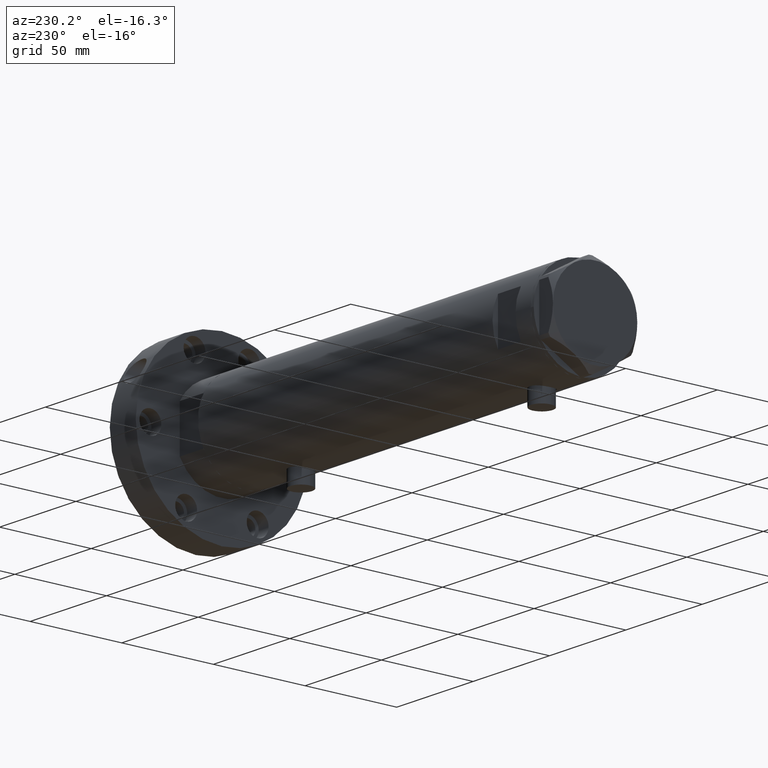
[diagram: clean part render]
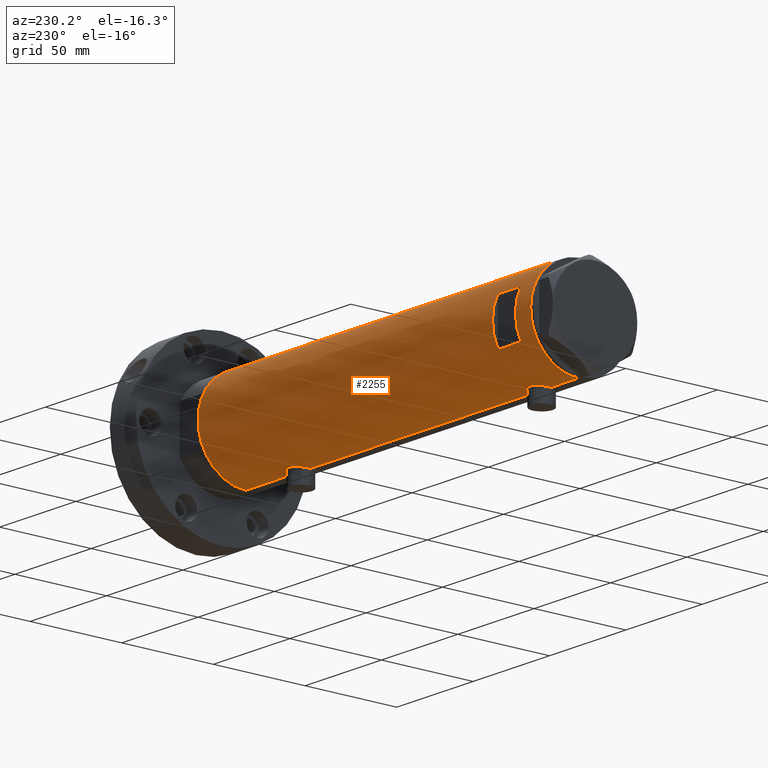
[diagram: same view with one face highlighted and labeled with its STEP entity id]
A machine part, auxiliary view. The second image highlights one B-rep face of the part: STEP entity #2255.
In plain terms, the highlighted cylindrical surface (partial cylindrical patch) has radius 26 mm, axis along (-1, -0, 0).
Its self-contained STEP definition (entity closure, byte-faithful):
#3 = CARTESIAN_POINT ( 'NONE',  ( 25.52465069878074644, 4.952713637311411787, 83.81255139184743541 ) ) ;
#17 = CARTESIAN_POINT ( 'NONE',  ( -25.92432690655987670, 2.018143994254067319, -78.57929422822714116 ) ) ;
#23 = CARTESIAN_POINT ( 'NONE',  ( -25.23757896588369576, 6.250168635417627350, 84.54324691589501128 ) ) ;
#27 = CARTESIAN_POINT ( 'NONE',  ( 25.89067367629247229, 2.424883365422557002, 96.56405204505172435 ) ) ;
#42 = CARTESIAN_POINT ( 'NONE',  ( -26.00000000000000355, 0.2043916521039003675, -78.90000000000000568 ) ) ;
#56 = CARTESIAN_POINT ( 'NONE',  ( 26.00000000000000000, 0.4983968644076025023, 81.95000000000000284 ) ) ;
#103 = CARTESIAN_POINT ( 'NONE',  ( 24.96662810169869928, 7.257932614256882076, -67.79702690473266102 ) ) ;
#136 = CARTESIAN_POINT ( 'NONE',  ( 25.20855488770172315, 6.367749707222650990, -65.77997776959041687 ) ) ;
#143 = ORIENTED_EDGE ( 'NONE', *, *, #1745, .T. ) ;
#157 = CARTESIAN_POINT ( 'NONE',  ( -25.98789693408479096, 0.8193301824841990877, 78.75051019734652868 ) ) ;
#208 = EDGE_CURVE ( 'NONE', #4496, #1179, #825, .T. ) ;
#215 = CARTESIAN_POINT ( 'NONE',  ( 25.48882460966381203, 5.133289275481222269, -75.22343523597911030 ) ) ;
#227 = VERTEX_POINT ( 'NONE', #4969 ) ;
#291 = AXIS2_PLACEMENT_3D ( 'NONE', #5024, #6446, #6051 ) ;
#321 = CARTESIAN_POINT ( 'NONE',  ( -25.90661719257679252, 2.209805098346972585, -66.80011254218482009 ) ) ;
#326 = ORIENTED_EDGE ( 'NONE', *, *, #5452, .F. ) ;
#376 = CARTESIAN_POINT ( 'NONE',  ( -25.42927140605242542, 5.422776733968215801, -69.51556003986718224 ) ) ;
#384 = CARTESIAN_POINT ( 'NONE',  ( -25.28673619335055278, 6.048783215285170378, 83.32449009651818983 ) ) ;
#399 = EDGE_CURVE ( 'NONE', #3932, #3839, #3460, .T. ) ;
#414 = CARTESIAN_POINT ( 'NONE',  ( -25.38675822915647728, 5.615881323213574028, -69.87693218337989265 ) ) ;
#427 = EDGE_CURVE ( 'NONE', #5497, #606, #6129, .T. ) ;
#449 = CARTESIAN_POINT ( 'NONE',  ( -25.57167265924275057, 4.701795585128869526, 80.82723711689963864 ) ) ;
#453 = CARTESIAN_POINT ( 'NONE',  ( 25.20855488770171604, 6.367749707222649214, 93.42002223040957176 ) ) ;
#472 = CARTESIAN_POINT ( 'NONE',  ( -25.98057228346869607, 1.024901789261876139, -78.81880585854824517 ) ) ;
#483 = CARTESIAN_POINT ( 'NONE',  ( 25.31017500740585291, 5.951503630041879767, 94.02049592637402498 ) ) ;
#510 = CARTESIAN_POINT ( 'NONE',  ( -25.72087293759780380, 3.814831448865738661, -77.61738294827860329 ) ) ;
#518 = CARTESIAN_POINT ( 'NONE',  ( -26.00000000000000355, 1.227111019500118713E-15, 91.20000000000000284 ) ) ;
#521 = CARTESIAN_POINT ( 'NONE',  ( 25.59685363299822569, 4.579266302355758711, 95.40972068102654191 ) ) ;
#570 = CARTESIAN_POINT ( 'NONE',  ( -25.31518616157687518, 5.930210831981638009, -74.66587117207023994 ) ) ;
#581 = CARTESIAN_POINT ( 'NONE',  ( 24.96662810169870284, 7.257932614256881187, 91.40297309526737024 ) ) ;
#606 = VERTEX_POINT ( 'NONE', #3075 ) ;
#632 = CARTESIAN_POINT ( 'NONE',  ( 25.08669247833291394, 6.831361936037332327, -66.64462260596206988 ) ) ;
#634 = ORIENTED_EDGE ( 'NONE', *, *, #2372, .F. ) ;
#638 = CARTESIAN_POINT ( 'NONE',  ( 25.63006864069251378, 4.375159448492150105, -75.84654411758884862 ) ) ;
#652 = ORIENTED_EDGE ( 'NONE', *, *, #4270, .F. ) ;
#663 = CARTESIAN_POINT ( 'NONE',  ( 25.01140519645288407, 7.101774040639634578, -72.17392235700825154 ) ) ;
#667 = CARTESIAN_POINT ( 'NONE',  ( 25.59528664075983428, 4.573671112500307778, -75.69909503516727511 ) ) ;
#689 = CARTESIAN_POINT ( 'NONE',  ( 25.98255381630416849, 0.9836221648041321153, 96.88933098058195981 ) ) ;
#745 = VERTEX_POINT ( 'NONE', #4640 ) ;
#766 = LINE ( 'NONE', #4320, #4999 ) ;
#818 = DIRECTION ( 'NONE',  ( 1.000000000000000000, 0.000000000000000000, 0.000000000000000000 ) ) ;
#825 = B_SPLINE_CURVE_WITH_KNOTS ( 'NONE', 3,
 ( #857, #3882, #5840, #4337, #5934, #5881, #321, #2901, #1915, #1819, #2430, #3812, #5410, #376, #414, #5812, #6434, #1446, #4398, #3451, #1321, #1353, #6408, #2935, #570, #1077, #5106, #1536, #2523, #3489, #1967, #1107, #4584, #4000, #510, #6495, #5572, #17, #5473, #472, #5973, #3021, #42, #6070 ),
 .UNSPECIFIED., .F., .F.,
 ( 4, 2, 2, 2, 2, 2, 2, 2, 2, 2, 2, 2, 2, 2, 2, 2, 2, 2, 2, 2, 2, 4 ),
 ( 1.191872608207982896E-18, 0.001225774033668401188, 0.001838661050502596794, 0.002451548067336792400, 0.003677322101005198792, 0.004903096134673604750, 0.006128870168342011142, 0.007354644202010417534, 0.007967531218844622898, 0.008580418235678826527, 0.009806192269347190418, 0.01103196630301555604, 0.01225774033668391994, 0.01287062735351812356, 0.01348351437035232546, 0.01409640138718652735, 0.01470928840402073098, 0.01593506243768915906, 0.01716083647135759060, 0.01838661050502601868, 0.01899949752186023619, 0.01961238453869445023 ),
 .UNSPECIFIED. ) ;
#857 = CARTESIAN_POINT ( 'NONE',  ( -26.00000000000000355, 1.227111019500118713E-15, -66.40000000000000568 ) ) ;
#872 = ORIENTED_EDGE ( 'NONE', *, *, #1515, .F. ) ;
#881 = ORIENTED_EDGE ( 'NONE', *, *, #4776, .F. ) ;
#888 = CARTESIAN_POINT ( 'NONE',  ( -25.57189498399054983, 4.707763994471525493, 89.08090281055548587 ) ) ;
#920 = CARTESIAN_POINT ( 'NONE',  ( -25.31738333113901263, 5.918941409682878074, 86.96757922472318114 ) ) ;
#959 = CARTESIAN_POINT ( 'NONE',  ( -25.95015815577422913, 1.621168830448742826, 90.98958570439819482 ) ) ;
#964 = CARTESIAN_POINT ( 'NONE',  ( 25.08669247833291749, 6.831361936037331439, 92.55537739403790454 ) ) ;
#989 = CARTESIAN_POINT ( 'NONE',  ( 25.41763780493359803, 5.474943943663465262, 94.58176313788933953 ) ) ;
#1020 = CARTESIAN_POINT ( 'NONE',  ( -25.28915991580760192, 6.038390257328910771, 86.57552651146907863 ) ) ;
#1023 = CARTESIAN_POINT ( 'NONE',  ( 25.38117076385347204, 5.641057083563605801, 94.39856579741848464 ) ) ;
#1077 = CARTESIAN_POINT ( 'NONE',  ( -25.36894112891956965, 5.694149517195237209, -75.23482505198309411 ) ) ;
#1080 = DIRECTION ( 'NONE',  ( 0.000000000000000000, 0.000000000000000000, 1.000000000000000000 ) ) ;
#1090 = CARTESIAN_POINT ( 'NONE',  ( 24.89484527721567986, 7.499778575171907491, 88.95449194517063063 ) ) ;
#1096 = CARTESIAN_POINT ( 'NONE',  ( 26.00000000000001066, 0.2455784580650491045, -62.25000000000000000 ) ) ;
#1107 = CARTESIAN_POINT ( 'NONE',  ( -25.57167265924274702, 4.701795585128869526, -76.77276288310035568 ) ) ;
#1109 = AXIS2_PLACEMENT_3D ( 'NONE', #5787, #1785, #818 ) ;
#1170 = CARTESIAN_POINT ( 'NONE',  ( 26.00000000000000355, -3.975028449552882818E-20, -62.24999999999999289 ) ) ;
#1179 = VERTEX_POINT ( 'NONE', #4111 ) ;
#1198 = CARTESIAN_POINT ( 'NONE',  ( 24.90951684770587704, 7.451587374037550227, -70.73395604521196844 ) ) ;
#1205 = CARTESIAN_POINT ( 'NONE',  ( 25.78922176490238627, 3.335318700939514436, -76.48550568766478364 ) ) ;
#1227 = CARTESIAN_POINT ( 'NONE',  ( 12.12435565298214080, 23.00000000000000355, 98.95000000000001705 ) ) ;
#1293 = FACE_BOUND ( 'NONE', #1659, .T. ) ;
#1321 = CARTESIAN_POINT ( 'NONE',  ( -25.23766275406408965, 6.249830297096023557, -72.23808095444880450 ) ) ;
#1353 = CARTESIAN_POINT ( 'NONE',  ( -25.23757896588369931, 6.250168635417630014, -73.05675308410499724 ) ) ;
#1446 = CARTESIAN_POINT ( 'NONE',  ( -25.28915991580760192, 6.038390257328910771, -71.02447348853092990 ) ) ;
#1450 = AXIS2_PLACEMENT_3D ( 'NONE', #4580, #3581, #2236 ) ;
#1455 = CARTESIAN_POINT ( 'NONE',  ( -25.90661719257679607, 2.209805098346973029, 90.79988745781523107 ) ) ;
#1459 = CIRCLE ( 'NONE', #291, 26.00000000000000355 ) ;
#1462 = CARTESIAN_POINT ( 'NONE',  ( 25.86510134953875450, 2.654921787384018739, 82.43132938305093660 ) ) ;
#1479 = CARTESIAN_POINT ( 'NONE',  ( -26.00000000000000355, 3.184077527313362130E-15, 78.69999999999998863 ) ) ;
#1487 = CARTESIAN_POINT ( 'NONE',  ( -25.92432690655987315, 2.018143994254077978, 79.02070577177285315 ) ) ;
#1513 = CARTESIAN_POINT ( 'NONE',  ( -25.96182217530153480, 1.422664245316465959, 91.03935273092393743 ) ) ;
#1515 = EDGE_CURVE ( 'NONE', #2695, #5580, #4541, .T. ) ;
#1536 = CARTESIAN_POINT ( 'NONE',  ( -25.43062364804611875, 5.412314182902751014, -75.78227648580933362 ) ) ;
#1548 = CARTESIAN_POINT ( 'NONE',  ( 25.98569222077104968, 0.9879514382926425364, 81.99918153312438562 ) ) ;
#1559 = CARTESIAN_POINT ( 'NONE',  ( 25.27545867390323764, 6.096774941222101063, -65.37522593042032781 ) ) ;
#1572 = CARTESIAN_POINT ( 'NONE',  ( 26.00000000000000355, 0.000000000000000000, -108.9500000000000028 ) ) ;
#1586 = CARTESIAN_POINT ( 'NONE',  ( 25.94484652078419273, 1.709678645892025228, 82.14334653240821638 ) ) ;
#1590 = CARTESIAN_POINT ( 'NONE',  ( 25.17424625143662098, 6.506691718592107598, -73.51241626033730370 ) ) ;
#1622 = CARTESIAN_POINT ( 'NONE',  ( 25.38117076385347559, 5.641057083563609353, -64.80143420258154663 ) ) ;
#1627 = CARTESIAN_POINT ( 'NONE',  ( 25.88814720404043968, 2.420758939209245231, -76.85288286828455284 ) ) ;
#1645 = EDGE_CURVE ( 'NONE', #5153, #2285, #2559, .T. ) ;
#1659 = EDGE_LOOP ( 'NONE', ( #326, #1668, #881, #652 ) ) ;
#1668 = ORIENTED_EDGE ( 'NONE', *, *, #6371, .F. ) ;
#1676 = DIRECTION ( 'NONE',  ( 1.000000000000000000, 0.000000000000000000, 0.000000000000000000 ) ) ;
#1709 = DIRECTION ( 'NONE',  ( 0.000000000000000000, 0.000000000000000000, 1.000000000000000000 ) ) ;
#1745 = EDGE_CURVE ( 'NONE', #745, #1179, #3410, .T. ) ;
#1785 = DIRECTION ( 'NONE',  ( 0.000000000000000000, 0.000000000000000000, 1.000000000000000000 ) ) ;
#1791 = DIRECTION ( 'NONE',  ( -0.000000000000000000, -0.000000000000000000, -1.000000000000000000 ) ) ;
#1819 = CARTESIAN_POINT ( 'NONE',  ( -25.72105193281917934, 3.813738527046908189, -67.68166308900568140 ) ) ;
#1844 = LINE ( 'NONE', #4725, #5846 ) ;
#1873 = CARTESIAN_POINT ( 'NONE',  ( -26.00000000000000355, 3.184081677783118585E-15, -108.9500000000000028 ) ) ;
#1915 = CARTESIAN_POINT ( 'NONE',  ( -25.81251897318926325, 3.135439098787735190, -67.22800821914826486 ) ) ;
#1919 = CARTESIAN_POINT ( 'NONE',  ( -25.45277932469920046, 5.307477387851101014, 81.64327199834687576 ) ) ;
#1943 = CARTESIAN_POINT ( 'NONE',  ( -25.85449082491264150, 2.772892880050696007, 79.33390702514675752 ) ) ;
#1947 = B_SPLINE_CURVE_WITH_KNOTS ( 'NONE', 3,
 ( #6236, #5732, #6123, #3183, #5172, #1627, #5140, #1205, #3209, #638, #667, #5204, #215, #4192, #6090, #1590, #4047, #2114, #663, #3627, #2147, #1198, #5133, #3598, #2186, #103, #3143, #632, #5623, #5590, #136, #1559, #4638, #1622, #3073, #4150, #6153, #3663, #4571, #5059, #3205, #4117, #3571, #5665, #1096, #1170 ),
 .UNSPECIFIED., .F., .F.,
 ( 4, 2, 2, 2, 2, 2, 2, 2, 2, 2, 2, 2, 2, 2, 2, 2, 2, 2, 2, 2, 2, 2, 4 ),
 ( 3.063710492572517602E-19, 0.001473395154583137480, 0.002210092731874702641, 0.002946790309166267153, 0.004420185463749410487, 0.005156883041040983238, 0.005893580618332555990, 0.007366975772915672870, 0.008840370927498791484, 0.009577068504790330408, 0.01031376608208186933, 0.01178716123666491075, 0.01326055639124795044, 0.01473395154583099012, 0.01547064912312249088, 0.01620734670041399164, 0.01694404427770549240, 0.01768074185499699316, 0.01915413700957996693, 0.02062753216416294069, 0.02210092731874591793, 0.02283762489603740134, 0.02357432247332888822 ),
 .UNSPECIFIED. ) ;
#1967 = CARTESIAN_POINT ( 'NONE',  ( -25.52275868012767646, 4.960454986366444885, -76.45761629406632665 ) ) ;
#1969 = CIRCLE ( 'NONE', #1450, 26.00000000000000355 ) ;
#1974 = EDGE_CURVE ( 'NONE', #2285, #5497, #1947, .T. ) ;
#1982 = CARTESIAN_POINT ( 'NONE',  ( 25.92799636947105668, 1.948138538329400093, 82.20322312211784777 ) ) ;
#2010 = CARTESIAN_POINT ( 'NONE',  ( -25.85406084573621754, 2.777003695811651962, 90.56412841326093144 ) ) ;
#2037 = CARTESIAN_POINT ( 'NONE',  ( -25.24784248027028966, 6.209126813737962713, 84.12731838311941601 ) ) ;
#2071 = CARTESIAN_POINT ( 'NONE',  ( 25.38132706741445688, 5.649034551923790559, 84.49268047185954345 ) ) ;
#2105 = CARTESIAN_POINT ( 'NONE',  ( -25.98057228346869607, 1.024901789261878138, 78.78119414145170651 ) ) ;
#2108 = CARTESIAN_POINT ( 'NONE',  ( 25.88814720404044323, 2.420758939209245675, 82.34711713171545000 ) ) ;
#2114 = CARTESIAN_POINT ( 'NONE',  ( 25.03487248886523275, 7.018875226450806082, -72.40423217392066135 ) ) ;
#2130 = CARTESIAN_POINT ( 'NONE',  ( 0.000000000000000000, 0.000000000000000000, -108.9500000000000028 ) ) ;
#2147 = CARTESIAN_POINT ( 'NONE',  ( 24.95233689475078265, 7.306396477445190385, -71.46103813146667960 ) ) ;
#2179 = CIRCLE ( 'NONE', #4985, 26.00000000000000355 ) ;
#2186 = CARTESIAN_POINT ( 'NONE',  ( 24.90976107960112529, 7.450765568638834324, -68.76117130648536602 ) ) ;
#2201 = DIRECTION ( 'NONE',  ( 1.000000000000000000, 0.000000000000000000, 0.000000000000000000 ) ) ;
#2236 = DIRECTION ( 'NONE',  ( 1.000000000000000000, -5.329070518200751394E-15, 0.000000000000000000 ) ) ;
#2255 = ADVANCED_FACE ( 'NONE', ( #1293, #6276 ), #5409, .T. ) ;
#2285 = VERTEX_POINT ( 'NONE', #4312 ) ;
#2329 = DIRECTION ( 'NONE',  ( 0.000000000000000000, 0.000000000000000000, 1.000000000000000000 ) ) ;
#2333 = B_SPLINE_CURVE_WITH_KNOTS ( 'NONE', 3,
 ( #4011, #56, #1548, #1586, #1982, #2108, #1462, #6046, #3560, #4504, #3069, #3, #2563, #2071, #5053, #4464, #4079, #6474, #5986, #6010, #5584, #3521, #1090, #3469, #5084, #581, #5510, #964, #2979, #4951, #453, #3496, #483, #1023, #989, #3035, #521, #2536, #4535, #27, #6112, #2673, #689, #2704, #4737, #3233 ),
 .UNSPECIFIED., .F., .F.,
 ( 4, 2, 2, 2, 2, 2, 2, 2, 2, 2, 2, 2, 2, 2, 2, 2, 2, 2, 2, 2, 2, 2, 4 ),
 ( 1.109123384753006195E-18, 0.001473395154583141816, 0.002210092731874708279, 0.002946790309166274525, 0.004420185463749423498, 0.005156883041040996249, 0.005893580618332569000, 0.007366975772915686747, 0.008840370927498805362, 0.009577068504790344286, 0.01031376608208188494, 0.01178716123666492463, 0.01326055639124796431, 0.01473395154583100573, 0.01547064912312250649, 0.01620734670041400205, 0.01694404427770550628, 0.01768074185499700357, 0.01915413700957997734, 0.02062753216416295110, 0.02210092731874592140, 0.02283762489603740828, 0.02357432247332889169 ),
 .UNSPECIFIED. ) ;
#2372 = EDGE_CURVE ( 'NONE', #227, #3932, #5472, .T. ) ;
#2405 = CARTESIAN_POINT ( 'NONE',  ( -25.36894112891957320, 5.694149517195235433, 82.36517494801691441 ) ) ;
#2430 = CARTESIAN_POINT ( 'NONE',  ( -25.67095236150574067, 4.133649689219787149, -67.94464771725739638 ) ) ;
#2435 = CARTESIAN_POINT ( 'NONE',  ( -25.81206132723604796, 3.139065735901513055, 79.53021230639120631 ) ) ;
#2463 = CARTESIAN_POINT ( 'NONE',  ( -25.81251897318926680, 3.135439098787735190, 90.37199178085172946 ) ) ;
#2523 = CARTESIAN_POINT ( 'NONE',  ( -25.45277932469920756, 5.307477387851102790, -75.95672800165310434 ) ) ;
#2531 = CARTESIAN_POINT ( 'NONE',  ( -25.72105193281917579, 3.813738527046907745, 89.91833691099431292 ) ) ;
#2536 = CARTESIAN_POINT ( 'NONE',  ( 25.72868876879095978, 3.768709330223698473, 95.95267486870062612 ) ) ;
#2559 = LINE ( 'NONE', #5548, #5132 ) ;
#2563 = CARTESIAN_POINT ( 'NONE',  ( 25.48882460966380847, 5.133289275481220493, 83.97656476402089254 ) ) ;
#2631 = ORIENTED_EDGE ( 'NONE', *, *, #427, .F. ) ;
#2673 = CARTESIAN_POINT ( 'NONE',  ( 25.97197502027376714, 1.230965554787594840, 96.85240824498376355 ) ) ;
#2695 = VERTEX_POINT ( 'NONE', #5764 ) ;
#2704 = CARTESIAN_POINT ( 'NONE',  ( 25.99652140603930306, 0.4914164889130540614, 96.93796820480460497 ) ) ;
#2755 = ORIENTED_EDGE ( 'NONE', *, *, #1974, .F. ) ;
#2901 = CARTESIAN_POINT ( 'NONE',  ( -25.85406084573620689, 2.777003695811651962, -67.03587158673903446 ) ) ;
#2902 = CARTESIAN_POINT ( 'NONE',  ( -12.12435565298214080, 23.00000000000000355, 98.95000000000001705 ) ) ;
#2908 = DIRECTION ( 'NONE',  ( 0.000000000000000000, 0.000000000000000000, 1.000000000000000000 ) ) ;
#2935 = CARTESIAN_POINT ( 'NONE',  ( -25.28673619335057055, 6.048783215285170378, -74.27550990348181870 ) ) ;
#2944 = CARTESIAN_POINT ( 'NONE',  ( -25.59680708126579773, 4.563450671387936808, 80.67456050020027192 ) ) ;
#2975 = CARTESIAN_POINT ( 'NONE',  ( -25.92257874449350652, 2.014648337067151296, 90.86996418363678174 ) ) ;
#2979 = CARTESIAN_POINT ( 'NONE',  ( 25.11550258961939619, 6.725017566862045548, 92.77928477806018748 ) ) ;
#3021 = CARTESIAN_POINT ( 'NONE',  ( -25.99759026373432391, 0.4091325989570675503, -78.88999890044902941 ) ) ;
#3030 = CARTESIAN_POINT ( 'NONE',  ( -25.27696731428695998, 6.089059008147561514, 86.37416306959481460 ) ) ;
#3035 = CARTESIAN_POINT ( 'NONE',  ( 25.52590365620542912, 4.955152228772157663, 95.10123727588242559 ) ) ;
#3069 = CARTESIAN_POINT ( 'NONE',  ( 25.59528664075983428, 4.573671112500310443, 83.50090496483274194 ) ) ;
#3073 = CARTESIAN_POINT ( 'NONE',  ( 25.41763780493360869, 5.474943943663467039, -64.61823686211067752 ) ) ;
#3075 = CARTESIAN_POINT ( 'NONE',  ( 26.00000000000000355, 1.142179864233347086E-15, 81.94999999999998863 ) ) ;
#3125 = VERTEX_POINT ( 'NONE', #1227 ) ;
#3143 = CARTESIAN_POINT ( 'NONE',  ( 25.00820649268564466, 7.115348876445598769, -67.32815999524548545 ) ) ;
#3183 = CARTESIAN_POINT ( 'NONE',  ( 25.94484652078418208, 1.709678645892024340, -77.05665346759174383 ) ) ;
#3186 = ORIENTED_EDGE ( 'NONE', *, *, #3475, .T. ) ;
#3205 = CARTESIAN_POINT ( 'NONE',  ( 25.93077501166307641, 1.957027822413552220, -62.49302141437592439 ) ) ;
#3209 = CARTESIAN_POINT ( 'NONE',  ( 25.72923282622328500, 3.765147152416744802, -76.25485575784709624 ) ) ;
#3233 = CARTESIAN_POINT ( 'NONE',  ( 26.00000000000000355, -3.975030973907779525E-20, 96.95000000000000284 ) ) ;
#3370 = DIRECTION ( 'NONE',  ( 0.000000000000000000, 0.000000000000000000, 1.000000000000000000 ) ) ;
#3410 = LINE ( 'NONE', #1873, #5362 ) ;
#3451 = CARTESIAN_POINT ( 'NONE',  ( -25.24766879991036816, 6.209837761082653174, -71.83150430970304967 ) ) ;
#3460 = CIRCLE ( 'NONE', #4492, 26.00000000000000355 ) ;
#3463 = CARTESIAN_POINT ( 'NONE',  ( -25.67095236150574777, 4.133649689219788925, 89.65535228274261215 ) ) ;
#3464 = CARTESIAN_POINT ( 'NONE',  ( -26.00000000000000355, 3.184081677783118585E-15, -108.9500000000000028 ) ) ;
#3469 = CARTESIAN_POINT ( 'NONE',  ( 24.89471231507666715, 7.500219916954801391, 89.93878226883029470 ) ) ;
#3475 = EDGE_CURVE ( 'NONE', #5153, #745, #2179, .T. ) ;
#3489 = CARTESIAN_POINT ( 'NONE',  ( -25.49884629689153215, 5.081547904122039938, -76.29439805696090104 ) ) ;
#3496 = CARTESIAN_POINT ( 'NONE',  ( 25.27545867390324474, 6.096774941222101951, 93.82477406957971766 ) ) ;
#3518 = CARTESIAN_POINT ( 'NONE',  ( -25.33346170681504361, 5.849967696906720249, 87.15947052099507175 ) ) ;
#3521 = CARTESIAN_POINT ( 'NONE',  ( 24.90951684770588059, 7.451587374037549338, 88.46604395478804861 ) ) ;
#3560 = CARTESIAN_POINT ( 'NONE',  ( 25.72923282622329211, 3.765147152416750131, 82.94514424215292081 ) ) ;
#3571 = CARTESIAN_POINT ( 'NONE',  ( 25.98255381630415073, 0.9836221648041368892, -62.31066901941806435 ) ) ;
#3579 = VERTEX_POINT ( 'NONE', #4846 ) ;
#3581 = DIRECTION ( 'NONE',  ( -0.000000000000000000, -0.000000000000000000, -1.000000000000000000 ) ) ;
#3598 = CARTESIAN_POINT ( 'NONE',  ( 24.89471231507667071, 7.500219916954801391, -69.26121773116975078 ) ) ;
#3627 = CARTESIAN_POINT ( 'NONE',  ( 24.97016856345951297, 7.245430721349229941, -71.70303040919394277 ) ) ;
#3662 = VECTOR ( 'NONE', #1709, 1000.000000000000000 ) ;
#3663 = CARTESIAN_POINT ( 'NONE',  ( 25.72868876879095978, 3.768709330223699361, -63.24732513129934119 ) ) ;
#3744 = EDGE_CURVE ( 'NONE', #606, #227, #2333, .T. ) ;
#3765 = ORIENTED_EDGE ( 'NONE', *, *, #399, .F. ) ;
#3812 = CARTESIAN_POINT ( 'NONE',  ( -25.57189498399055694, 4.707763994471526381, -68.51909718944453687 ) ) ;
#3839 = VERTEX_POINT ( 'NONE', #4170 ) ;
#3882 = CARTESIAN_POINT ( 'NONE',  ( -26.00000000000001066, 0.4145874687851194285, -66.40000000000000568 ) ) ;
#3916 = CARTESIAN_POINT ( 'NONE',  ( -25.52275868012768356, 4.960454986366445773, 81.14238370593368188 ) ) ;
#3932 = VERTEX_POINT ( 'NONE', #4586 ) ;
#3935 = DIRECTION ( 'NONE',  ( 0.000000000000000000, 0.000000000000000000, 1.000000000000000000 ) ) ;
#3981 = CARTESIAN_POINT ( 'NONE',  ( -25.67176285215957776, 4.128807479817784731, 80.24008401548879021 ) ) ;
#4000 = CARTESIAN_POINT ( 'NONE',  ( -25.67176285215958487, 4.128807479817783843, -77.35991598451124673 ) ) ;
#4011 = CARTESIAN_POINT ( 'NONE',  ( 26.00000000000000355, 1.142179864233347086E-15, 81.94999999999998863 ) ) ;
#4032 = CARTESIAN_POINT ( 'NONE',  ( -25.99009688862344092, 0.8219492608955324409, 91.15915939226573528 ) ) ;
#4047 = CARTESIAN_POINT ( 'NONE',  ( 25.11254978876589306, 6.737777305585169074, -73.08025351746414344 ) ) ;
#4071 = VECTOR ( 'NONE', #1791, 1000.000000000000000 ) ;
#4079 = CARTESIAN_POINT ( 'NONE',  ( 25.11254978876589661, 6.737777305585169962, 86.11974648253587361 ) ) ;
#4107 = CARTESIAN_POINT ( 'NONE',  ( -25.99759026373432391, 0.4091325989570679389, 78.71000109955099333 ) ) ;
#4111 = CARTESIAN_POINT ( 'NONE',  ( -26.00000000000000355, 3.184077527325983904E-15, -78.90000000000000568 ) ) ;
#4117 = CARTESIAN_POINT ( 'NONE',  ( 25.97197502027376004, 1.230965554787593730, -62.34759175501625350 ) ) ;
#4129 = DIRECTION ( 'NONE',  ( 0.000000000000000000, 0.000000000000000000, 1.000000000000000000 ) ) ;
#4150 = CARTESIAN_POINT ( 'NONE',  ( 25.52590365620542912, 4.955152228772157663, -64.09876272411760567 ) ) ;
#4170 = CARTESIAN_POINT ( 'NONE',  ( -26.00000000000000355, 3.184081677783118585E-15, 108.9500000000000028 ) ) ;
#4175 = CARTESIAN_POINT ( 'NONE',  ( -26.00000000000000000, 0.2043916521039007284, 78.69999999999998863 ) ) ;
#4192 = CARTESIAN_POINT ( 'NONE',  ( 25.38132706741445688, 5.649034551923791447, -74.70731952814048782 ) ) ;
#4208 = CARTESIAN_POINT ( 'NONE',  ( 26.00000000000000355, 0.000000000000000000, -108.9500000000000028 ) ) ;
#4218 = DIRECTION ( 'NONE',  ( 0.000000000000000000, 0.000000000000000000, 1.000000000000000000 ) ) ;
#4270 = EDGE_CURVE ( 'NONE', #4892, #3125, #1969, .T. ) ;
#4312 = CARTESIAN_POINT ( 'NONE',  ( 26.00000000000000355, 3.155021778966484351E-16, -77.25000000000001421 ) ) ;
#4320 = CARTESIAN_POINT ( 'NONE',  ( -26.00000000000000355, 3.184081677783118585E-15, -108.9500000000000028 ) ) ;
#4337 = CARTESIAN_POINT ( 'NONE',  ( -25.96182217530152769, 1.422664245316465736, -66.56064726907608531 ) ) ;
#4353 = ORIENTED_EDGE ( 'NONE', *, *, #1645, .F. ) ;
#4398 = CARTESIAN_POINT ( 'NONE',  ( -25.27696731428695642, 6.089059008147561514, -71.22583693040516550 ) ) ;
#4404 = CARTESIAN_POINT ( 'NONE',  ( -25.38875076695534361, 5.605452563035131064, 82.17814099175892295 ) ) ;
#4431 = CARTESIAN_POINT ( 'NONE',  ( -25.24766879991037172, 6.209837761082654062, 85.76849569029695886 ) ) ;
#4455 = EDGE_CURVE ( 'NONE', #2695, #3839, #766, .T. ) ;
#4464 = CARTESIAN_POINT ( 'NONE',  ( 25.17424625143662809, 6.506691718592108487, 85.68758373966277020 ) ) ;
#4492 = AXIS2_PLACEMENT_3D ( 'NONE', #5146, #4129, #2201 ) ;
#4496 = VERTEX_POINT ( 'NONE', #6413 ) ;
#4504 = CARTESIAN_POINT ( 'NONE',  ( 25.63006864069250668, 4.375159448492152769, 83.35345588241116843 ) ) ;
#4516 = CARTESIAN_POINT ( 'NONE',  ( -12.12435565298214080, 23.00000000000000355, 83.95000000000003126 ) ) ;
#4530 = CARTESIAN_POINT ( 'NONE',  ( -25.23766275406408965, 6.249830297096023557, 85.36191904555117560 ) ) ;
#4535 = CARTESIAN_POINT ( 'NONE',  ( 25.78997056644825037, 3.329333406239041615, 96.18834808433848593 ) ) ;
#4541 = B_SPLINE_CURVE_WITH_KNOTS ( 'NONE', 3,
 ( #518, #5914, #4032, #1513, #959, #2975, #1455, #2010, #2463, #2531, #3463, #888, #4886, #4976, #6439, #3518, #920, #1020, #3030, #4431, #4530, #23, #2037, #384, #5417, #2405, #4404, #5479, #1919, #4948, #3916, #449, #2944, #3981, #4921, #2435, #1943, #1487, #5581, #2105, #157, #4107, #4175, #6220 ),
 .UNSPECIFIED., .F., .F.,
 ( 4, 2, 2, 2, 2, 2, 2, 2, 2, 2, 2, 2, 2, 2, 2, 2, 2, 2, 2, 2, 2, 4 ),
 ( 1.191872608207982896E-18, 0.001225774033668414415, 0.001838661050502624766, 0.002451548067336834901, 0.003677322101005254303, 0.004903096134673673272, 0.006128870168342093541, 0.007354644202010512943, 0.007967531218844704430, 0.008580418235678894182, 0.009806192269347313584, 0.01103196630301573472, 0.01225774033668415586, 0.01287062735351834561, 0.01348351437035253536, 0.01409640138718672858, 0.01470928840402092007, 0.01593506243768930131, 0.01716083647135768081, 0.01838661050502606725, 0.01899949752186025700, 0.01961238453869444676 ),
 .UNSPECIFIED. ) ;
#4571 = CARTESIAN_POINT ( 'NONE',  ( 25.78997056644823971, 3.329333406239046056, -63.01165191566149559 ) ) ;
#4580 = CARTESIAN_POINT ( 'NONE',  ( 0.000000000000000000, 0.000000000000000000, 98.95000000000001705 ) ) ;
#4584 = CARTESIAN_POINT ( 'NONE',  ( -25.59680708126579773, 4.563450671387937696, -76.92543949979970819 ) ) ;
#4586 = CARTESIAN_POINT ( 'NONE',  ( 26.00000000000000355, 0.000000000000000000, 108.9500000000000028 ) ) ;
#4638 = CARTESIAN_POINT ( 'NONE',  ( 25.31017500740584580, 5.951503630041877102, -65.17950407362599208 ) ) ;
#4640 = CARTESIAN_POINT ( 'NONE',  ( -26.00000000000000355, 3.184081677783118585E-15, -108.9500000000000028 ) ) ;
#4650 = EDGE_CURVE ( 'NONE', #4496, #5580, #5390, .T. ) ;
#4725 = CARTESIAN_POINT ( 'NONE',  ( -12.12435565298214080, 23.00000000000000355, -108.9500000000000028 ) ) ;
#4734 = CARTESIAN_POINT ( 'NONE',  ( 12.12435565298214080, 23.00000000000000355, -108.9500000000000028 ) ) ;
#4737 = CARTESIAN_POINT ( 'NONE',  ( 25.99999999999999289, 0.2455784580650480498, 96.94999999999996021 ) ) ;
#4754 = DIRECTION ( 'NONE',  ( 0.000000000000000000, 0.000000000000000000, 1.000000000000000000 ) ) ;
#4776 = EDGE_CURVE ( 'NONE', #3125, #3579, #6221, .T. ) ;
#4846 = CARTESIAN_POINT ( 'NONE',  ( 12.12435565298213724, 23.00000000000000355, 83.95000000000003126 ) ) ;
#4886 = CARTESIAN_POINT ( 'NONE',  ( -25.52242378584899640, 4.965907353613394193, 88.76719602921738783 ) ) ;
#4892 = VERTEX_POINT ( 'NONE', #2902 ) ;
#4921 = CARTESIAN_POINT ( 'NONE',  ( -25.72087293759779669, 3.814831448865735997, 79.98261705172140523 ) ) ;
#4948 = CARTESIAN_POINT ( 'NONE',  ( -25.49884629689154281, 5.081547904122039938, 81.30560194303910748 ) ) ;
#4951 = CARTESIAN_POINT ( 'NONE',  ( 25.17636585680005368, 6.493453152855889421, 93.21099249662803743 ) ) ;
#4969 = CARTESIAN_POINT ( 'NONE',  ( 26.00000000000000355, -3.975030973907779525E-20, 96.95000000000000284 ) ) ;
#4976 = CARTESIAN_POINT ( 'NONE',  ( -25.42927140605242187, 5.422776733968214025, 88.08443996013284050 ) ) ;
#4985 = AXIS2_PLACEMENT_3D ( 'NONE', #2130, #1080, #1676 ) ;
#4999 = VECTOR ( 'NONE', #3370, 1000.000000000000000 ) ;
#5024 = CARTESIAN_POINT ( 'NONE',  ( 0.000000000000000000, 0.000000000000000000, 83.95000000000011653 ) ) ;
#5053 = CARTESIAN_POINT ( 'NONE',  ( 25.30960479024496479, 5.958491152160530824, 84.86860322320038108 ) ) ;
#5059 = CARTESIAN_POINT ( 'NONE',  ( 25.89067367629246164, 2.424883365422559223, -62.63594795494831402 ) ) ;
#5084 = CARTESIAN_POINT ( 'NONE',  ( 24.90976107960112529, 7.450765568638835212, 90.43882869351465104 ) ) ;
#5106 = CARTESIAN_POINT ( 'NONE',  ( -25.38875076695533650, 5.605452563035129288, -75.42185900824102873 ) ) ;
#5132 = VECTOR ( 'NONE', #4218, 1000.000000000000000 ) ;
#5133 = CARTESIAN_POINT ( 'NONE',  ( 24.89484527721568696, 7.499778575171907491, -70.24550805482940063 ) ) ;
#5140 = CARTESIAN_POINT ( 'NONE',  ( 25.86510134953875450, 2.654921787384016518, -76.76867061694905203 ) ) ;
#5146 = CARTESIAN_POINT ( 'NONE',  ( 0.000000000000000000, 0.000000000000000000, 108.9500000000000028 ) ) ;
#5153 = VERTEX_POINT ( 'NONE', #5162 ) ;
#5162 = CARTESIAN_POINT ( 'NONE',  ( 26.00000000000000355, 0.000000000000000000, -108.9500000000000028 ) ) ;
#5172 = CARTESIAN_POINT ( 'NONE',  ( 25.92799636947105313, 1.948138538329398539, -76.99677687788214087 ) ) ;
#5204 = CARTESIAN_POINT ( 'NONE',  ( 25.52465069878074644, 4.952713637311410011, -75.38744860815259585 ) ) ;
#5208 = ORIENTED_EDGE ( 'NONE', *, *, #3744, .F. ) ;
#5362 = VECTOR ( 'NONE', #2329, 1000.000000000000000 ) ;
#5382 = ORIENTED_EDGE ( 'NONE', *, *, #4455, .T. ) ;
#5390 = LINE ( 'NONE', #3464, #5854 ) ;
#5409 = CYLINDRICAL_SURFACE ( 'NONE', #1109, 26.00000000000000355 ) ;
#5410 = CARTESIAN_POINT ( 'NONE',  ( -25.52242378584899640, 4.965907353613394193, -68.83280397078264912 ) ) ;
#5417 = CARTESIAN_POINT ( 'NONE',  ( -25.31518616157687518, 5.930210831981638009, 82.93412882792975438 ) ) ;
#5452 = EDGE_CURVE ( 'NONE', #5776, #4892, #1844, .T. ) ;
#5468 = CARTESIAN_POINT ( 'NONE',  ( 26.00000000000000355, -3.975028449552882818E-20, -62.24999999999999289 ) ) ;
#5472 = LINE ( 'NONE', #1572, #6145 ) ;
#5473 = CARTESIAN_POINT ( 'NONE',  ( -25.95208098418916975, 1.628413954368976846, -78.69806792170716392 ) ) ;
#5479 = CARTESIAN_POINT ( 'NONE',  ( -25.43062364804611875, 5.412314182902751902, 81.81772351419066069 ) ) ;
#5497 = VERTEX_POINT ( 'NONE', #5468 ) ;
#5510 = CARTESIAN_POINT ( 'NONE',  ( 25.00820649268565532, 7.115348876445601434, 91.87184000475454582 ) ) ;
#5548 = CARTESIAN_POINT ( 'NONE',  ( 26.00000000000000355, 0.000000000000000000, -108.9500000000000028 ) ) ;
#5572 = CARTESIAN_POINT ( 'NONE',  ( -25.85449082491265571, 2.772892880050684017, -78.26609297485326522 ) ) ;
#5580 = VERTEX_POINT ( 'NONE', #1479 ) ;
#5581 = CARTESIAN_POINT ( 'NONE',  ( -25.95208098418916975, 1.628413954368974625, 78.90193207829285882 ) ) ;
#5584 = CARTESIAN_POINT ( 'NONE',  ( 24.95233689475078975, 7.306396477445192161, 87.73896186853338008 ) ) ;
#5590 = CARTESIAN_POINT ( 'NONE',  ( 25.17636585680005368, 6.493453152855892085, -65.98900750337199383 ) ) ;
#5623 = CARTESIAN_POINT ( 'NONE',  ( 25.11550258961939264, 6.725017566862044660, -66.42071522193982958 ) ) ;
#5665 = CARTESIAN_POINT ( 'NONE',  ( 25.99652140603931727, 0.4914164889130587244, -62.26203179519543340 ) ) ;
#5732 = CARTESIAN_POINT ( 'NONE',  ( 26.00000000000000355, 0.4983968644076023913, -77.25000000000000000 ) ) ;
#5764 = CARTESIAN_POINT ( 'NONE',  ( -26.00000000000000355, 1.227111019500118713E-15, 91.20000000000000284 ) ) ;
#5776 = VERTEX_POINT ( 'NONE', #4516 ) ;
#5787 = CARTESIAN_POINT ( 'NONE',  ( 0.000000000000000000, 0.000000000000000000, -108.9500000000000028 ) ) ;
#5812 = CARTESIAN_POINT ( 'NONE',  ( -25.33346170681504361, 5.849967696906721137, -70.44052947900497941 ) ) ;
#5840 = CARTESIAN_POINT ( 'NONE',  ( -25.99009688862344092, 0.8219492608955326629, -66.44084060773425904 ) ) ;
#5846 = VECTOR ( 'NONE', #4754, 1000.000000000000000 ) ;
#5854 = VECTOR ( 'NONE', #2908, 1000.000000000000000 ) ;
#5881 = CARTESIAN_POINT ( 'NONE',  ( -25.92257874449351718, 2.014648337067152184, -66.73003581636324100 ) ) ;
#5914 = CARTESIAN_POINT ( 'NONE',  ( -26.00000000000000711, 0.4145874687851191509, 91.20000000000001705 ) ) ;
#5934 = CARTESIAN_POINT ( 'NONE',  ( -25.95015815577422558, 1.621168830448743048, -66.61041429560181371 ) ) ;
#5973 = CARTESIAN_POINT ( 'NONE',  ( -25.98789693408478740, 0.8193301824842001979, -78.84948980265349405 ) ) ;
#5986 = CARTESIAN_POINT ( 'NONE',  ( 25.01140519645288762, 7.101774040639633689, 87.02607764299175130 ) ) ;
#6010 = CARTESIAN_POINT ( 'NONE',  ( 24.97016856345952363, 7.245430721349229053, 87.49696959080610270 ) ) ;
#6039 = ORIENTED_EDGE ( 'NONE', *, *, #208, .F. ) ;
#6046 = CARTESIAN_POINT ( 'NONE',  ( 25.78922176490237916, 3.335318700939514880, 82.71449431233524763 ) ) ;
#6051 = DIRECTION ( 'NONE',  ( 0.000000000000000000, 1.000000000000000000, -4.803849625781927035E-15 ) ) ;
#6070 = CARTESIAN_POINT ( 'NONE',  ( -26.00000000000000355, 3.184077527325983904E-15, -78.90000000000000568 ) ) ;
#6090 = CARTESIAN_POINT ( 'NONE',  ( 25.30960479024496834, 5.958491152160531712, -74.33139677679966439 ) ) ;
#6107 = EDGE_LOOP ( 'NONE', ( #3186, #143, #6039, #6285, #872, #5382, #3765, #634, #5208, #2631, #2755, #4353 ) ) ;
#6112 = CARTESIAN_POINT ( 'NONE',  ( 25.93077501166307997, 1.957027822413550000, 96.70697858562412819 ) ) ;
#6123 = CARTESIAN_POINT ( 'NONE',  ( 25.98569222077104257, 0.9879514382926418703, -77.20081846687564564 ) ) ;
#6129 = LINE ( 'NONE', #4208, #3662 ) ;
#6145 = VECTOR ( 'NONE', #3935, 1000.000000000000000 ) ;
#6153 = CARTESIAN_POINT ( 'NONE',  ( 25.59685363299823280, 4.579266302355757823, -63.79027931897347514 ) ) ;
#6220 = CARTESIAN_POINT ( 'NONE',  ( -26.00000000000000355, 3.184077527313362130E-15, 78.69999999999998863 ) ) ;
#6221 = LINE ( 'NONE', #4734, #4071 ) ;
#6236 = CARTESIAN_POINT ( 'NONE',  ( 26.00000000000000355, 3.155021778966484351E-16, -77.25000000000001421 ) ) ;
#6276 = FACE_OUTER_BOUND ( 'NONE', #6107, .T. ) ;
#6285 = ORIENTED_EDGE ( 'NONE', *, *, #4650, .T. ) ;
#6371 = EDGE_CURVE ( 'NONE', #3579, #5776, #1459, .T. ) ;
#6408 = CARTESIAN_POINT ( 'NONE',  ( -25.24784248027028966, 6.209126813737962713, -73.47268161688060673 ) ) ;
#6413 = CARTESIAN_POINT ( 'NONE',  ( -26.00000000000000355, 1.227111019500118713E-15, -66.40000000000000568 ) ) ;
#6434 = CARTESIAN_POINT ( 'NONE',  ( -25.31738333113900907, 5.918941409682878074, -70.63242077527678475 ) ) ;
#6439 = CARTESIAN_POINT ( 'NONE',  ( -25.38675822915647728, 5.615881323213574028, 87.72306781662007324 ) ) ;
#6446 = DIRECTION ( 'NONE',  ( 0.000000000000000000, 4.625929269271486900E-15, 1.000000000000000000 ) ) ;
#6474 = CARTESIAN_POINT ( 'NONE',  ( 25.03487248886523275, 7.018875226450804306, 86.79576782607934149 ) ) ;
#6495 = CARTESIAN_POINT ( 'NONE',  ( -25.81206132723605862, 3.139065735901515275, -78.06978769360878800 ) ) ;